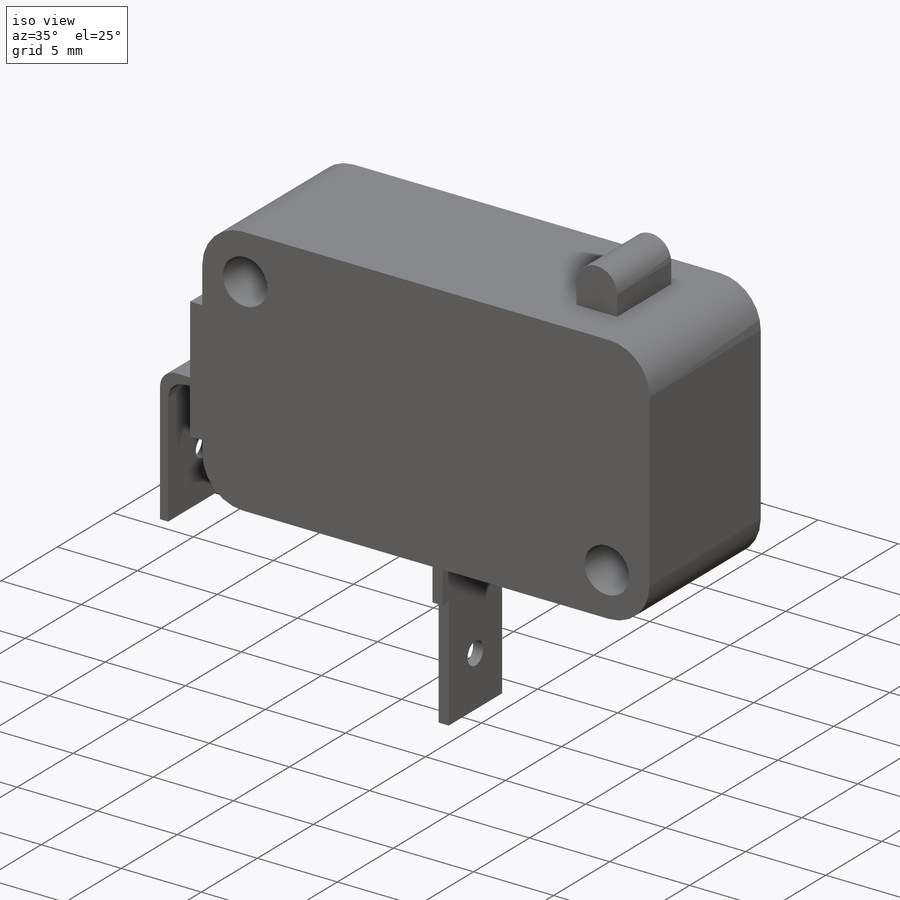
[diagram: iso view]
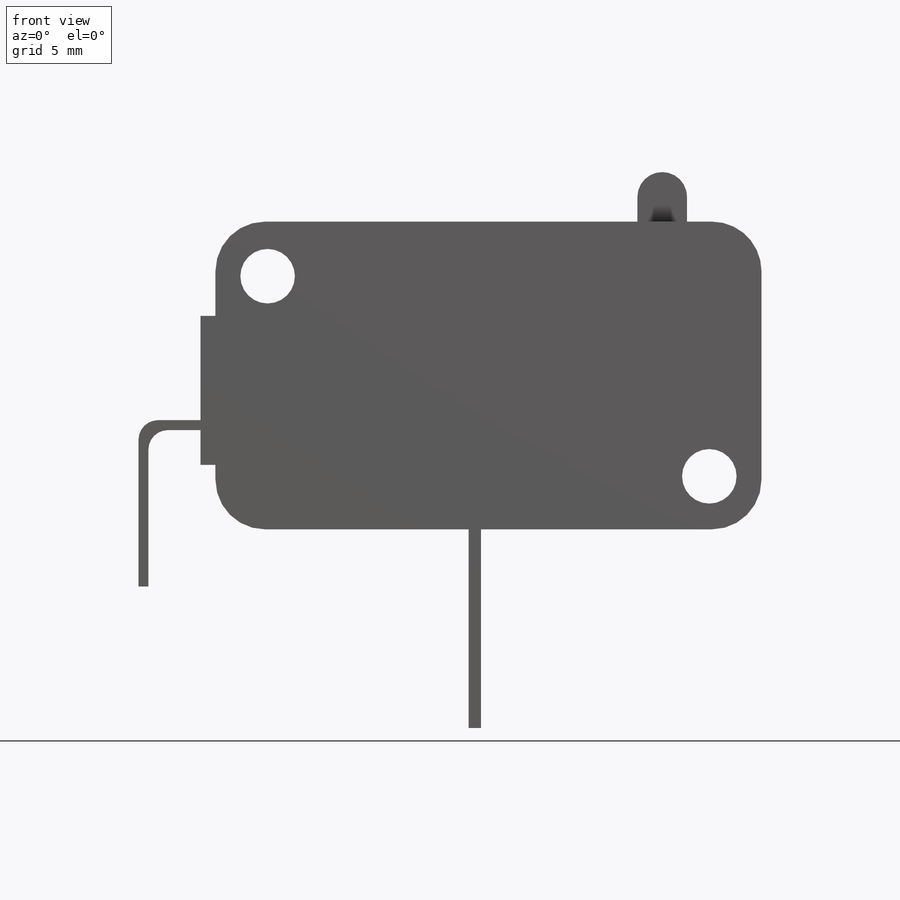
[diagram: front view]
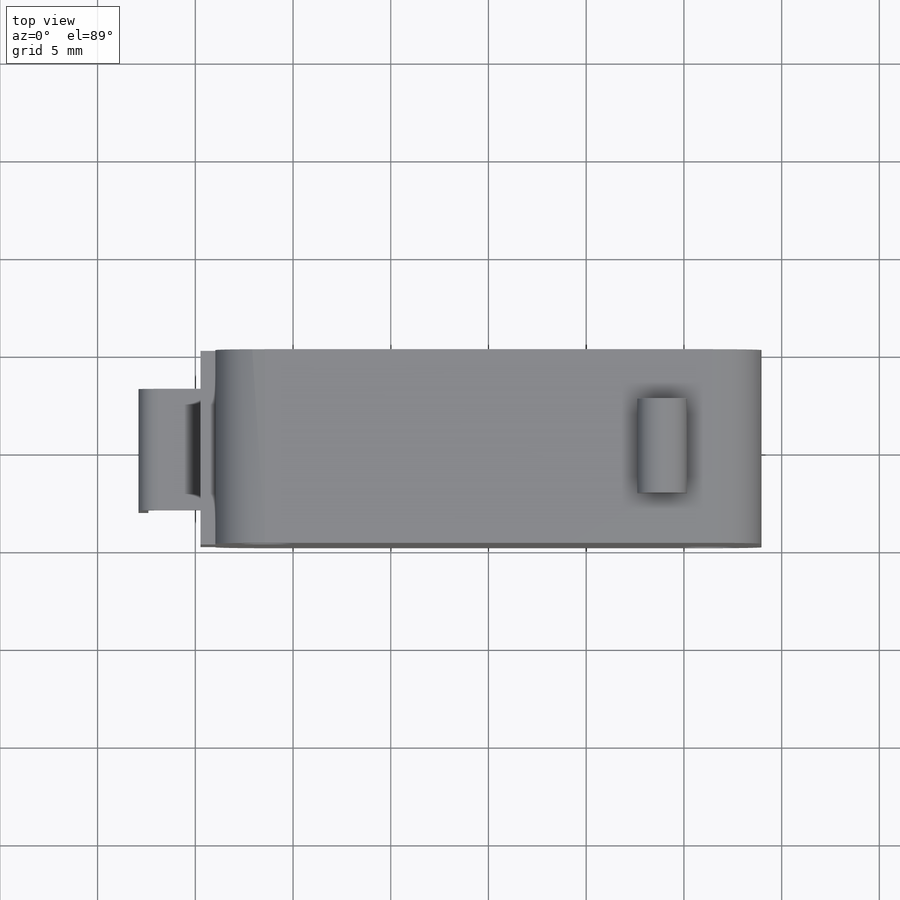
[diagram: top view]
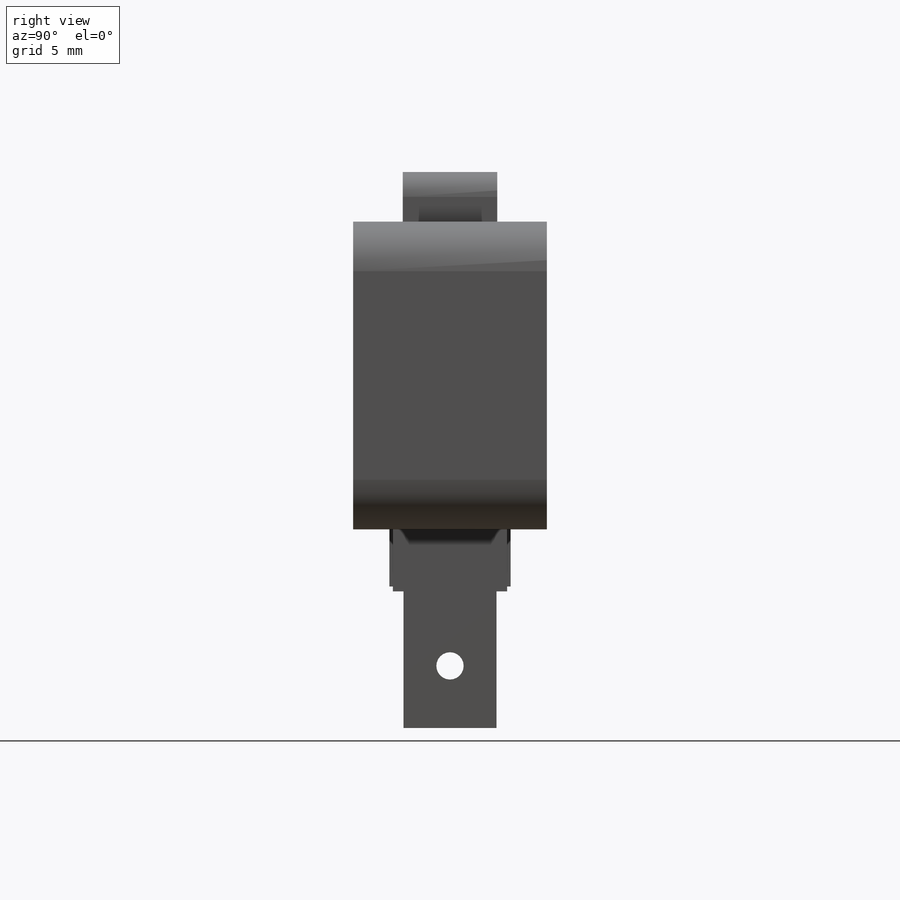
[diagram: right view]
SOLIDWORKS PART (.sldprt)
format: sldprt  version: not decoded by parser v0  size: 377,856 bytes
history: native  units: mm
features: sketch x11, extrude x4, cut_extrude x3, fillet x2, plane x2, material x1 (+13 scaffold rows collapsed)
feature tree (36):
  scaffold x13  (default folders/planes/origin — collapsed)
  material  "Material <not specified>"
  sketch  "Sketch1"  dims[D3=2.54mm D8=2.79mm D1=28.702mm D2=15.748mm D4=7.874mm D5=7.62mm D6=4.826mm D7=0.762mm D9=11.3mm D10=5.08mm D11=11.3mm D12=5.16mm]
  extrude  "Extrude1"  Depth=9.91mm
  sketch  "Sketch2"  dims[D1=3.556mm D2=1.27mm D3=0.508mm D4=0.508mm D5=9.906mm D6=9.906mm D7=3.175mm D8=8.509mm]
  extrude  "Extrude2"  Depth=6.21mm
  sketch  "Sketch3"  dims[c1.D5=1.27mm c1.D6=0.508mm c1.D7=0.508mm c1.D1=2.54mm c1.D2=10.16mm c1.D3=0.508mm c1.D4=2.54mm c2.D5=1.265mm c2.D8=49.53mm c2.D6=~47.173548mm c2.D7=~47.128348mm c2.D9=~48.870748mm c3.D9=~5.104759deg c3.D8=1.524mm c3.D10=~1.988643mm c4.D9=~49.333548mm c5.D9=~95.104759deg]
  extrude  "Extrude3"  Depth=4.83mm
  sketch  "Sketch4"  dims[c1.D4=0.508mm c1.D1=0.635mm c1.D2=0.635mm c1.D3=~2.082934mm c2.D3=~96.034465deg c2.D4=2.54mm c2.D5=3.11mm c3.D3=~9.597457mm c3.D6=0.38mm c3.D7=10.16mm]
  extrude  "Extrude4"  Depth=5.84mm
  sketch  "Sketch5"  dims[c1.D1=1.524mm c1.D3=0.508mm c1.D4=0.508mm c1.D2=~2.428859mm c2.D4=1.397mm c2.D2=~8.101824mm c2.D3=4.318mm c2.D5=2.16mm c3.D4=~6.351206mm c3.D6=~1.637558mm c3.D7=4.318mm c3.D2=3.175mm c3.D3=3.175mm c3.D5=4.7625mm c3.D1=0.0mm]
  cut_extrude  "Extrude5"  [1 undecoded]
  sketch  "Sketch6"  dims[D1=1.27mm D2=3.048mm]
  cut_extrude  "Extrude7"  [1 undecoded]
  cut_extrude  "Extrude8"  [1 undecoded]
  sketch  "Sketch"  dims[D1=15.84mm]
  fillet  "Fillet1"  Radius=1mm
  sketch  "Sketch7"
  plane  "Plane1"
  sketch  "Sketch9"
  plane  "Plane2"
  sketch  "0_0_Point"  dims[Diameter=2.0mm Width=0.0 Depth=0.0 StubLength=2.0mm]
  sketch  "0_1_Point"
  fillet  "Axis2"  Radius=2mm Diameter=2mm Width=0 Depth=0 StubLength=2mm
decode coverage: 14 of 20 modeling features carry decoded parameters
note: ~ marks probable driven/reference dimensions
note: 3 parameter values undecoded
summary: no parameter record found for 3 features
note: suppression state not decoded; provenance and decode notes live in map.json
